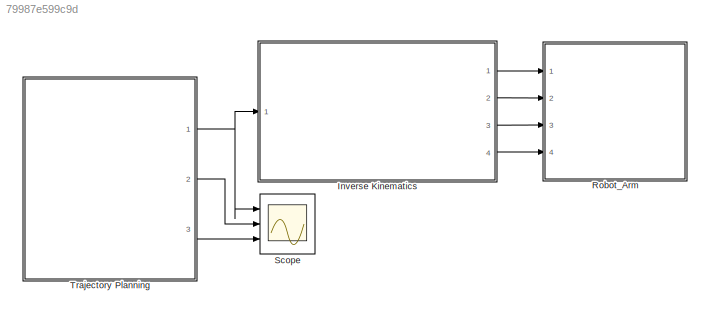
MODEL slx_79987e599c9d
KIND model
CONFIG AbsTol = auto
CONFIG EnableMultiTasking = on
CONFIG FixedStep = auto
CONFIG MaxStep = auto
CONFIG MinStep = auto
CONFIG RelTol = 1e-3
CONFIG SampleTimeConstraint = Unconstrained
CONFIG SolverName = FixedStepAuto
CONFIG StartTime = 0.0
CONFIG StopTime = 10.0
WORKSPACE source: external: MATLAB File  (data not in archive)
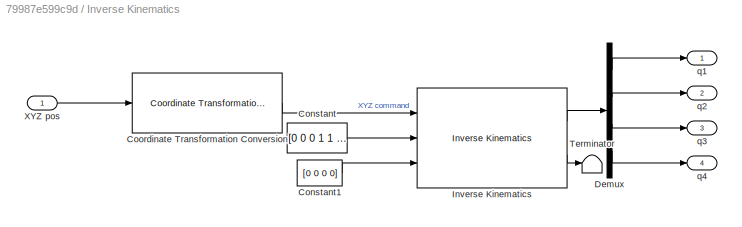
BLOCK [SubSystem] Inverse Kinematics
  Ports = [1, 4]
  RequestExecContextInheritance = off
BLOCK [Constant] Inverse Kinematics/Constant
  Value = [0 0 0 1 1 1]
BLOCK [Constant] Inverse Kinematics/Constant1
  Value = [0 0 0 0]
BLOCK [Reference] Inverse Kinematics/Coordinate Transformation Conversion  REF=robotcorelib/Coordinate Transformation Conversion
  Ports = [1, 1]
  SourceBlock = robotcorelib/Coordinate Transformation Conversion
  SourceProductBaseCode = NV,RO,RR,UV
  SourceType = robotics.slcore.internal.block.CoordinateTransformationConversion
BLOCK [Demux] Inverse Kinematics/Demux
  Ports = [1, 4]
BLOCK [Reference] Inverse Kinematics/Inverse Kinematics  REF=robotmaniplib/Inverse Kinematics
  Ports = [3, 2]
  SourceBlock = robotmaniplib/Inverse Kinematics
  SourceProductBaseCode = RO
  SourceType = Inverse Kinematics
BLOCK [Terminator] Inverse Kinematics/Terminator
BLOCK [Inport] Inverse Kinematics/XYZ pos
BLOCK [Outport] Inverse Kinematics/q1
BLOCK [Outport] Inverse Kinematics/q2
  Port = 2
BLOCK [Outport] Inverse Kinematics/q3
  Port = 3
BLOCK [Outport] Inverse Kinematics/q4
  Port = 4
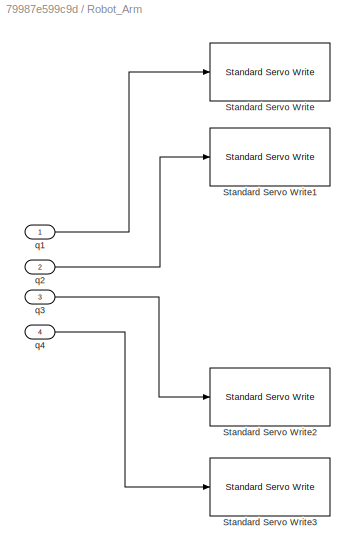
BLOCK [SubSystem] Robot_Arm
  Ports = [4]
  RequestExecContextInheritance = off
BLOCK [Reference] Robot_Arm/Standard Servo Write  REF=arduinolib/Standard Servo Write
  Ports = [1]
  SourceBlock = arduinolib/Standard Servo Write
  SourceProductBaseCode = ARDUINO
  SourceType = Arduino Standard Servo Write
BLOCK [Reference] Robot_Arm/Standard Servo Write1  REF=arduinolib/Standard Servo Write
  Ports = [1]
  SourceBlock = arduinolib/Standard Servo Write
  SourceProductBaseCode = ARDUINO
  SourceType = Arduino Standard Servo Write
BLOCK [Reference] Robot_Arm/Standard Servo Write2  REF=arduinolib/Standard Servo Write
  Ports = [1]
  SourceBlock = arduinolib/Standard Servo Write
  SourceProductBaseCode = ARDUINO
  SourceType = Arduino Standard Servo Write
BLOCK [Reference] Robot_Arm/Standard Servo Write3  REF=arduinolib/Standard Servo Write
  Ports = [1]
  SourceBlock = arduinolib/Standard Servo Write
  SourceProductBaseCode = ARDUINO
  SourceType = Arduino Standard Servo Write
BLOCK [Inport] Robot_Arm/q1
BLOCK [Inport] Robot_Arm/q2
  Port = 2
BLOCK [Inport] Robot_Arm/q3
  Port = 3
BLOCK [Inport] Robot_Arm/q4
  Port = 4
BLOCK [Scope] Scope
  Floating = off
  NumInputPorts = 3
  Ports = [3]
  ScopeSpecificationString = Simulink.scopes.TimeScopeBlockCfg('CurrentConfiguration', extmgr.ConfigurationSet(extmgr.Configuration('Core','General UI',true),extmgr.Configuration('Core','Source UI',true),extmgr.Configuration('Sources','WiredSimulink',true),extmgr.Configuration('Visuals','Time Domain',true),extmgr.Configuration('Tools','Plot Navigation',true),extmgr.Configuration('Tools','Measurements',true)),'Version','2021a'...<+1ch>
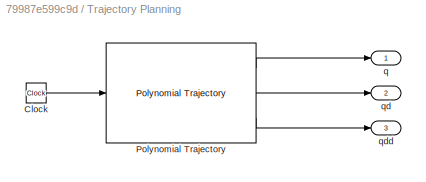
BLOCK [SubSystem] Trajectory Planning
  Ports = [0, 3]
  RequestExecContextInheritance = off
BLOCK [Clock] Trajectory Planning/Clock
BLOCK [Reference] Trajectory Planning/Polynomial Trajectory  REF=robotcorelib/Polynomial Trajectory
  Ports = [1, 3]
  SourceBlock = robotcorelib/Polynomial Trajectory
  SourceProductBaseCode = NV,RO,RR,UV
  SourceType = robotics.slcore.internal.block.PolyTrajSys
BLOCK [Outport] Trajectory Planning/q
BLOCK [Outport] Trajectory Planning/qd
  Port = 2
BLOCK [Outport] Trajectory Planning/qdd
  Port = 3
LINE Inverse Kinematics/Constant1:1 -> Inverse Kinematics/Inverse Kinematics:3
LINE Inverse Kinematics/Constant:1 -> Inverse Kinematics/Inverse Kinematics:2
LINE Inverse Kinematics/Coordinate Transformation Conversion:1 -> Inverse Kinematics/Inverse Kinematics:1
LINE Inverse Kinematics/Demux:1 -> Inverse Kinematics/q1:1
LINE Inverse Kinematics/Demux:2 -> Inverse Kinematics/q2:1
LINE Inverse Kinematics/Demux:3 -> Inverse Kinematics/q3:1
LINE Inverse Kinematics/Demux:4 -> Inverse Kinematics/q4:1
LINE Inverse Kinematics/Inverse Kinematics:1 -> Inverse Kinematics/Demux:1
LINE Inverse Kinematics/Inverse Kinematics:2 -> Inverse Kinematics/Terminator:1
LINE Inverse Kinematics/XYZ pos:1 -> Inverse Kinematics/Coordinate Transformation Conversion:1
LINE Inverse Kinematics:1 -> Robot_Arm:1
LINE Inverse Kinematics:2 -> Robot_Arm:2
LINE Inverse Kinematics:3 -> Robot_Arm:3
LINE Inverse Kinematics:4 -> Robot_Arm:4
LINE Robot_Arm/q1:1 -> Robot_Arm/Standard Servo Write:1
LINE Robot_Arm/q2:1 -> Robot_Arm/Standard Servo Write1:1
LINE Robot_Arm/q3:1 -> Robot_Arm/Standard Servo Write2:1
LINE Robot_Arm/q4:1 -> Robot_Arm/Standard Servo Write3:1
LINE Trajectory Planning/Clock:1 -> Trajectory Planning/Polynomial Trajectory:1
LINE Trajectory Planning/Polynomial Trajectory:1 -> Trajectory Planning/q:1
LINE Trajectory Planning/Polynomial Trajectory:2 -> Trajectory Planning/qd:1
LINE Trajectory Planning/Polynomial Trajectory:3 -> Trajectory Planning/qdd:1
NET Trajectory Planning:1 -> Inverse Kinematics:1, Scope:1
LINE Trajectory Planning:2 -> Scope:2
LINE Trajectory Planning:3 -> Scope:3
note: NET lines group one-source signal fan-out (src -> all destinations, sorted); 1:1 wires keep LINE
